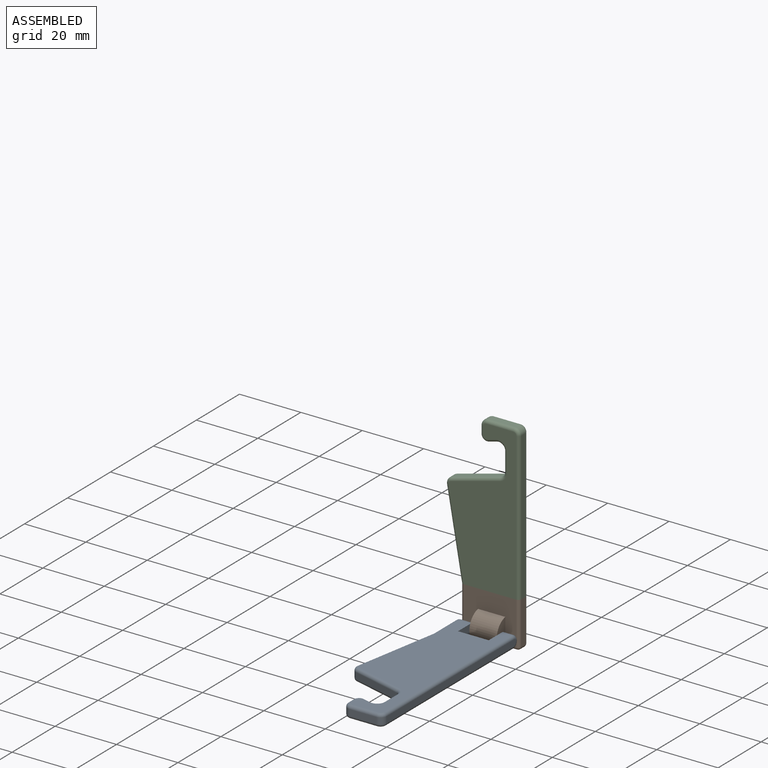
[diagram: assembled view]
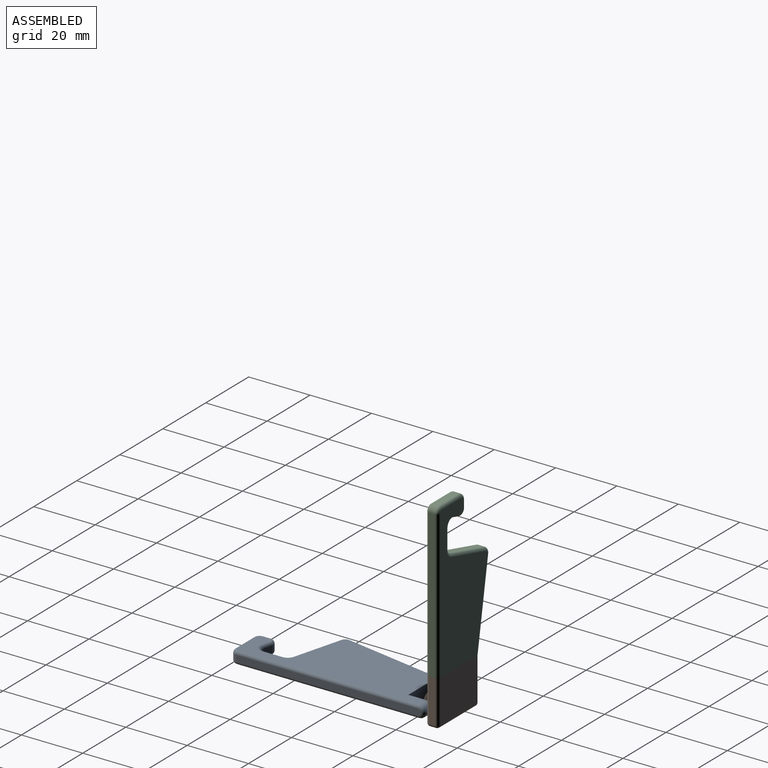
[diagram: assembled view, second angle]
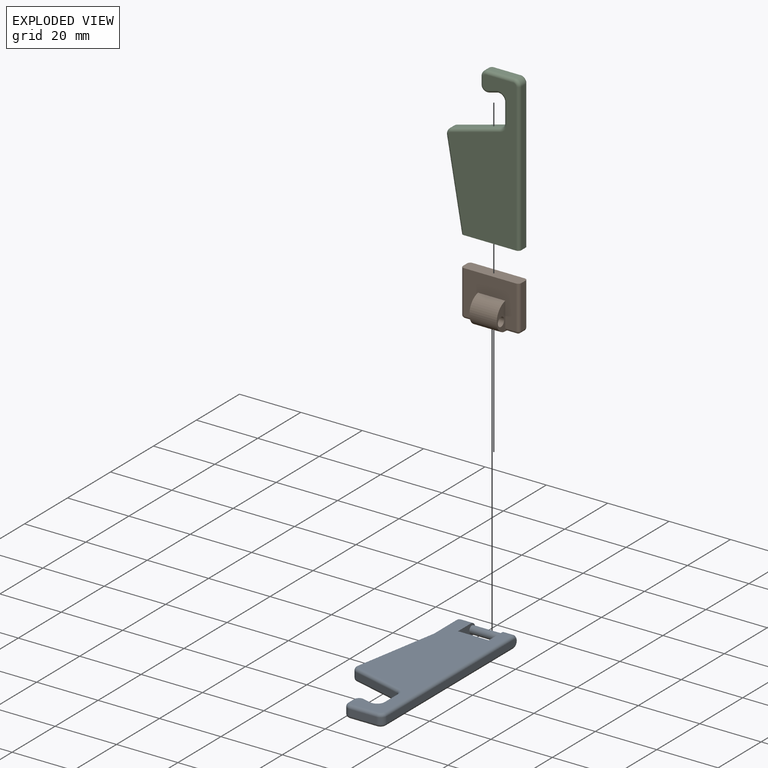
[diagram: exploded view]
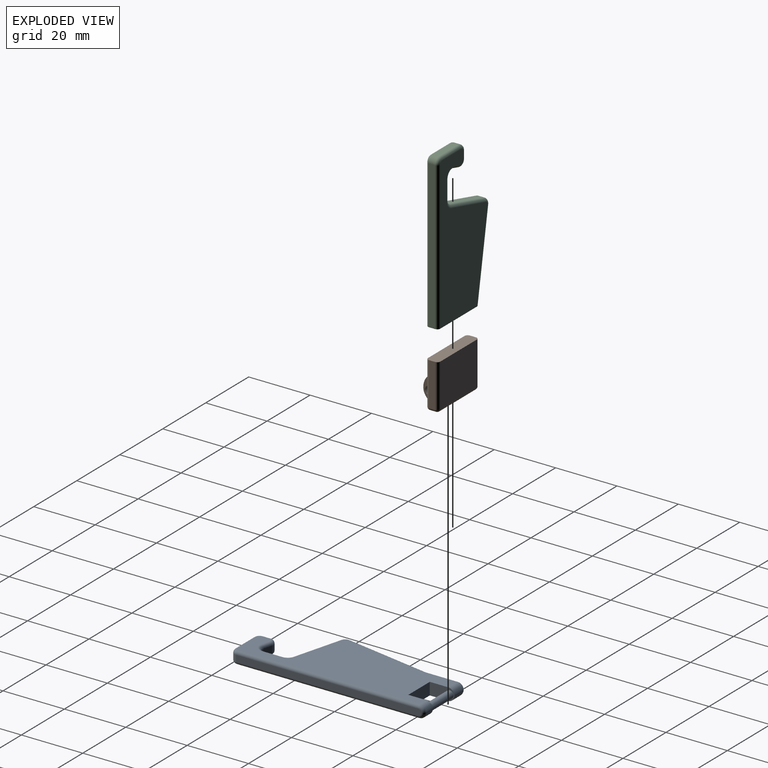
[diagram: exploded view, second angle]
ASSEMBLY  parts=3 mates=3
PART A: 55 faces, bbox 24.4x63.5x4.3 mm
  f0: plane 11.41x2mm, normal (-1,0,0), area 22.4mm2, adj f22,f23,f26,f27
  f1: plane 60.19x2mm, normal (1,0,0), area 120mm2, adj f21,f50,f52,f54
  f2: plane 8x4mm, normal (-1,0,0), area 25.4mm2, adj f3,f5,f6,f7,f9
  f3: plane 10x4mm, normal (0,1,0), area 40mm2, adj f2,f4,f5,f6
  f4: plane 8x4mm, normal (1,0,0), area 25.4mm2, adj f3,f5,f6,f8,f9
  f5: plane 60.19x22.03mm, normal (0,0,1), area 837.2mm2, adj f2,f3,f4,f7,f8,f22,f24,f25
  f6: plane 60.19x22.03mm, normal (0,0,-1), area 837.2mm2, adj f2,f3,f4,f7,f8,f26,f29,f31
  f7: cylinder r=2mm len=4mm, axis (1,0,0), area 18.8mm2, adj f2,f5,f6,f52
  f8: cylinder r=2mm len=4mm, axis (1,0,0), area 25.1mm2, adj f4,f5,f6,f23
  f9: cylinder r=1.25mm len=10mm, axis (-1,0,0), area 78.5mm2, adj f2,f4
  f10: plane 28.27x4.99mm, normal (-0.98,0.17,0), area 57.4mm2, adj f16,f25,f27,f31
  f11: plane 16.07x4.31mm, normal (-0.26,-0.97,0), area 33.3mm2, adj f16,f17,f30,f35
  f12: plane 6.21x2mm, normal (-1,0,0), area 12.4mm2, adj f17,f18,f34,f39
  f13: plane 2.69x2mm, normal (0.26,0.97,0), area 5.6mm2, adj f18,f19,f38,f43
  f14: plane 2.46x2mm, normal (-1,0,0), area 4.9mm2, adj f19,f20,f42,f47
  f15: plane 8.73x2mm, normal (0,-1,0), area 17.5mm2, adj f20,f21,f46,f51
  f16: cylinder r=2mm len=2.28mm, axis (0,0,1), area 5.9mm2, adj f10,f11,f28,f33
  f17: cylinder r=2mm len=2mm, axis (0,0,-1), area 5.2mm2, adj f11,f12,f32,f37
  f18: cylinder r=2mm len=2.52mm, axis (0,0,-1), area 7.3mm2, adj f12,f13,f36,f41
  f19: cylinder r=2mm len=2.52mm, axis (0,0,1), area 7.3mm2, adj f13,f14,f40,f45
  f20: cylinder r=2mm len=2mm, axis (0,0,1), area 6.3mm2, adj f14,f15,f44,f49
  f21: cylinder r=2mm len=2mm, axis (0,0,1), area 6.3mm2, adj f1,f15,f48,f53
  f22: cylinder r=1mm len=10.41mm, axis (0,1,0), area 16.4mm2, adj f0,f5,f23,f24
  f23: torus R=1mm, axis (-1,0,0), area 8.1mm2, adj f0,f8,f22,f26
  f24: torus R=2mm, axis (0,0,1), area 0.4mm2, adj f5,f22,f25,f27
  f25: cylinder r=1mm len=28.45mm, axis (-0.17,-0.98,0), area 45.1mm2, adj f5,f10,f24,f28
  f26: cylinder r=1mm len=10.41mm, axis (0,-1,0), area 16.4mm2, adj f0,f6,f23,f29
  f27: cylinder r=1mm len=2mm, axis (0,0,1), area 0.3mm2, adj f0,f10,f24,f29
  f28: torus R=1mm, axis (0,0,1), area 3.8mm2, adj f5,f16,f25,f30
  f29: torus R=2mm, axis (0,0,1), area 0.4mm2, adj f6,f26,f27,f31
  f30: cylinder r=1mm len=16.32mm, axis (0.97,-0.26,0), area 26.1mm2, adj f5,f11,f28,f32
  f31: cylinder r=1mm len=28.45mm, axis (-0.17,-0.98,0), area 45.1mm2, adj f6,f10,f29,f33
  f32: torus R=3mm, axis (0,0,1), area 4.9mm2, adj f5,f17,f30,f34
  f33: torus R=1mm, axis (0,0,1), area 3.8mm2, adj f6,f16,f31,f35
  f34: cylinder r=1mm len=6.21mm, axis (0,-1,0), area 9.8mm2, adj f5,f12,f32,f36
  f35: cylinder r=1mm len=16.32mm, axis (0.97,-0.26,0), area 26.1mm2, adj f6,f11,f33,f37
  f36: torus R=3mm, axis (0,0,1), area 6.8mm2, adj f5,f18,f34,f38
  f37: torus R=3mm, axis (0,0,1), area 4.9mm2, adj f6,f17,f35,f39
  f38: cylinder r=1mm len=2.95mm, axis (-0.97,0.26,0), area 4.4mm2, adj f5,f13,f36,f40
  f39: cylinder r=1mm len=6.21mm, axis (0,-1,0), area 9.8mm2, adj f6,f12,f37,f41
  f40: torus R=1mm, axis (0,0,1), area 4.7mm2, adj f5,f19,f38,f42
  f41: torus R=3mm, axis (0,0,1), area 6.8mm2, adj f6,f18,f39,f43
  f42: cylinder r=1mm len=2.46mm, axis (0,-1,0), area 3.9mm2, adj f5,f14,f40,f44
  f43: cylinder r=1mm len=2.95mm, axis (-0.97,0.26,0), area 4.4mm2, adj f6,f13,f41,f45
  f44: torus R=1mm, axis (0,0,1), area 4mm2, adj f5,f20,f42,f46
  f45: torus R=1mm, axis (0,0,1), area 4.7mm2, adj f6,f19,f43,f47
  f46: cylinder r=1mm len=8.73mm, axis (1,0,0), area 13.7mm2, adj f5,f15,f44,f48
  f47: cylinder r=1mm len=2.46mm, axis (0,-1,0), area 3.9mm2, adj f6,f14,f45,f49
  f48: torus R=1mm, axis (0,0,1), area 4mm2, adj f5,f21,f46,f50
  f49: torus R=1mm, axis (0,0,1), area 4mm2, adj f6,f20,f47,f51
  f50: cylinder r=1mm len=59.19mm, axis (0,-1,0), area 93mm2, adj f1,f5,f48,f52
  f51: cylinder r=1mm len=8.73mm, axis (1,0,0), area 13.7mm2, adj f6,f15,f49,f53
  f52: torus R=1mm, axis (1,0,0), area 8.1mm2, adj f1,f7,f50,f54
  f53: torus R=1mm, axis (0,0,1), area 4mm2, adj f6,f21,f51,f54
  f54: cylinder r=1mm len=59.19mm, axis (0,1,0), area 93mm2, adj f1,f6,f52,f53
PART B: 25 faces, bbox 19x15x8 mm
  f0: plane 17x3mm, normal (0,1,0), area 42.9mm2, adj f6,f7,f11,f13,f16,f19,f22,f24
  f1: plane 14x2mm, normal (-1,0,0), area 28mm2, adj f2,f12,f15,f16
  f2: plane 19x4mm, normal (0,-1,0), area 75.1mm2, adj f1,f3,f4,f5,f12,f15,f18,f21
  f3: plane 14x2mm, normal (1,0,0), area 28mm2, adj f2,f18,f21,f22
  f4: plane 17x14mm, normal (0,0,1), area 238mm2, adj f2,f15,f18,f19
  f5: plane 17x14mm, normal (0,0,-1), area 166.8mm2, adj f2,f6,f7,f10,f12,f13,f21,f24
  f6: plane 9x5mm, normal (-1,0,0), area 21.2mm2, adj f0,f5,f8,f9,f10,f11,f13
  f7: plane 9x5mm, normal (1,0,0), area 21.2mm2, adj f0,f5,f8,f9,f10,f11,f24
  f8: plane 8.9x0.1mm, normal (0,0,-1), area 0.9mm2, adj f6,f7,f10,f11
  f9: cylinder r=1.45mm len=8.9mm, axis (-1,0,0), area 81.1mm2, adj f6,f7
  f10: cylinder r=5mm len=8.9mm, axis (-1,0,0), area 60.9mm2, adj f5,f6,f7,f8
  f11: cylinder r=4mm len=8.9mm, axis (1,0,0), area 55.9mm2, adj f0,f6,f7,f8
  f12: cylinder r=1mm len=14mm, axis (0,-1,0), area 22mm2, adj f1,f2,f5,f14
  f13: cylinder r=1mm len=4.6mm, axis (-1,0,0), area 7.2mm2, adj f0,f5,f6,f14
  f14: sphere r=1mm, area 1.6mm2, adj f12,f13,f16
  f15: cylinder r=1mm len=14mm, axis (0,1,0), area 22mm2, adj f1,f2,f4,f17
  f16: cylinder r=1mm len=2mm, axis (0,0,1), area 3.1mm2, adj f0,f1,f14,f17
  f17: sphere r=1mm, area 1.6mm2, adj f15,f16,f19
  f18: cylinder r=1mm len=14mm, axis (0,-1,0), area 22mm2, adj f2,f3,f4,f20
  f19: cylinder r=1mm len=17mm, axis (1,0,0), area 26.7mm2, adj f0,f4,f17,f20
  f20: sphere r=1mm, area 1.6mm2, adj f18,f19,f22
  f21: cylinder r=1mm len=14mm, axis (0,1,0), area 22mm2, adj f2,f3,f5,f23
  f22: cylinder r=1mm len=2mm, axis (0,0,-1), area 3.1mm2, adj f0,f3,f20,f23
  f23: sphere r=1mm, area 1.6mm2, adj f21,f22,f24
  f24: cylinder r=1mm len=3.5mm, axis (-1,0,0), area 5.5mm2, adj f0,f5,f7,f23
PART C: 42 faces, bbox 24.3x50.5x4 mm
  f0: plane 19.05x4mm, normal (0,1,0), area 75.3mm2, adj f1,f7,f8,f9,f16,f28,f29,f41
  f1: plane 27.87x4.91mm, normal (-0.98,0.17,0), area 56.6mm2, adj f0,f10,f16,f29
  f2: plane 16.03x4.3mm, normal (-0.26,-0.97,0), area 33.2mm2, adj f10,f11,f18,f31
  f3: plane 6.21x2mm, normal (-1,0,0), area 12.4mm2, adj f11,f12,f20,f33
  f4: plane 2.69x2mm, normal (0.26,0.97,0), area 5.6mm2, adj f12,f13,f22,f35
  f5: plane 2.46x2mm, normal (-1,0,0), area 4.9mm2, adj f13,f14,f24,f37
  f6: plane 8.73x2mm, normal (0,-1,0), area 17.5mm2, adj f14,f15,f26,f39
  f7: plane 48.19x2mm, normal (1,0,0), area 96.4mm2, adj f0,f15,f28,f41
  f8: plane 49.19x21.99mm, normal (0,0,-1), area 709.1mm2, adj f0,f16,f17,f18,f19,f20,f21,f22
  f9: plane 49.19x21.99mm, normal (0,0,1), area 709.1mm2, adj f0,f29,f30,f31,f32,f33,f34,f35
  f10: cylinder r=2mm len=2.28mm, axis (0,0,1), area 5.9mm2, adj f1,f2,f17,f30
  f11: cylinder r=2mm len=2mm, axis (0,0,-1), area 5.2mm2, adj f2,f3,f19,f32
  f12: cylinder r=2mm len=2.52mm, axis (0,0,-1), area 7.3mm2, adj f3,f4,f21,f34
  f13: cylinder r=2mm len=2.52mm, axis (0,0,1), area 7.3mm2, adj f4,f5,f23,f36
  f14: cylinder r=2mm len=2mm, axis (0,0,1), area 6.3mm2, adj f5,f6,f25,f38
  f15: cylinder r=2mm len=2mm, axis (0,0,1), area 6.3mm2, adj f6,f7,f27,f40
  f16: cylinder r=1mm len=28.22mm, axis (0.17,0.98,0), area 44.6mm2, adj f0,f1,f8,f17
  f17: torus R=1mm, axis (0,0,1), area 3.8mm2, adj f8,f10,f16,f18
  f18: cylinder r=1mm len=16.29mm, axis (-0.97,0.26,0), area 26.1mm2, adj f2,f8,f17,f19
  f19: torus R=3mm, axis (0,0,1), area 4.9mm2, adj f8,f11,f18,f20
  f20: cylinder r=1mm len=6.21mm, axis (0,1,0), area 9.8mm2, adj f3,f8,f19,f21
  f21: torus R=3mm, axis (0,0,1), area 6.8mm2, adj f8,f12,f20,f22
  f22: cylinder r=1mm len=2.95mm, axis (0.97,-0.26,0), area 4.4mm2, adj f4,f8,f21,f23
  f23: torus R=1mm, axis (0,0,1), area 4.7mm2, adj f8,f13,f22,f24
  f24: cylinder r=1mm len=2.46mm, axis (0,1,0), area 3.9mm2, adj f5,f8,f23,f25
  f25: torus R=1mm, axis (0,0,1), area 4mm2, adj f8,f14,f24,f26
  f26: cylinder r=1mm len=8.73mm, axis (-1,0,0), area 13.7mm2, adj f6,f8,f25,f27
  f27: torus R=1mm, axis (0,0,1), area 4mm2, adj f8,f15,f26,f28
  f28: cylinder r=1mm len=48.19mm, axis (0,-1,0), area 75.7mm2, adj f0,f7,f8,f27
  f29: cylinder r=1mm len=28.22mm, axis (-0.17,-0.98,0), area 44.6mm2, adj f0,f1,f9,f30
  f30: torus R=1mm, axis (0,0,1), area 3.8mm2, adj f9,f10,f29,f31
  f31: cylinder r=1mm len=16.29mm, axis (0.97,-0.26,0), area 26.1mm2, adj f2,f9,f30,f32
  f32: torus R=3mm, axis (0,0,1), area 4.9mm2, adj f9,f11,f31,f33
  f33: cylinder r=1mm len=6.21mm, axis (0,-1,0), area 9.8mm2, adj f3,f9,f32,f34
  f34: torus R=3mm, axis (0,0,1), area 6.8mm2, adj f9,f12,f33,f35
  f35: cylinder r=1mm len=2.95mm, axis (-0.97,0.26,0), area 4.4mm2, adj f4,f9,f34,f36
  f36: torus R=1mm, axis (0,0,1), area 4.7mm2, adj f9,f13,f35,f37
  f37: cylinder r=1mm len=2.46mm, axis (0,-1,0), area 3.9mm2, adj f5,f9,f36,f38
  f38: torus R=1mm, axis (0,0,1), area 4mm2, adj f9,f14,f37,f39
  f39: cylinder r=1mm len=8.73mm, axis (1,0,0), area 13.7mm2, adj f6,f9,f38,f40
  f40: torus R=1mm, axis (0,0,1), area 4mm2, adj f9,f15,f39,f41
  f41: cylinder r=1mm len=48.19mm, axis (0,1,0), area 75.7mm2, adj f0,f7,f9,f40
PLACE A t=(-3.78,-5.88,3.71)mm fixed
PLACE B rot(axis=(-1,0,0),90deg) t=(-3.12,7.12,2.21)mm
PLACE C rot(axis=(-1,0,0),90deg) t=(-0.03,-0.58,10.83)mm
MATE planar C.f0 <-> B.f2  axis (0,0,-1) through (-13.33,9.12,17.21)mm
MATE planar C.f9 <-> B.f4  axis (0,1,0) through (-13.32,11.12,17.21)mm
MATE revolute B.f9 <-> A.f9  axis (-1,0,0) through (-12.78,5.12,5.71)mm
